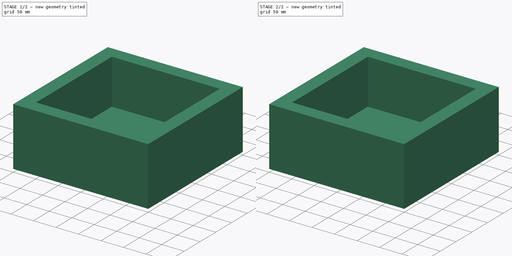
[diagram: build sequence overview — one tinted view per stage of 2, left to right]
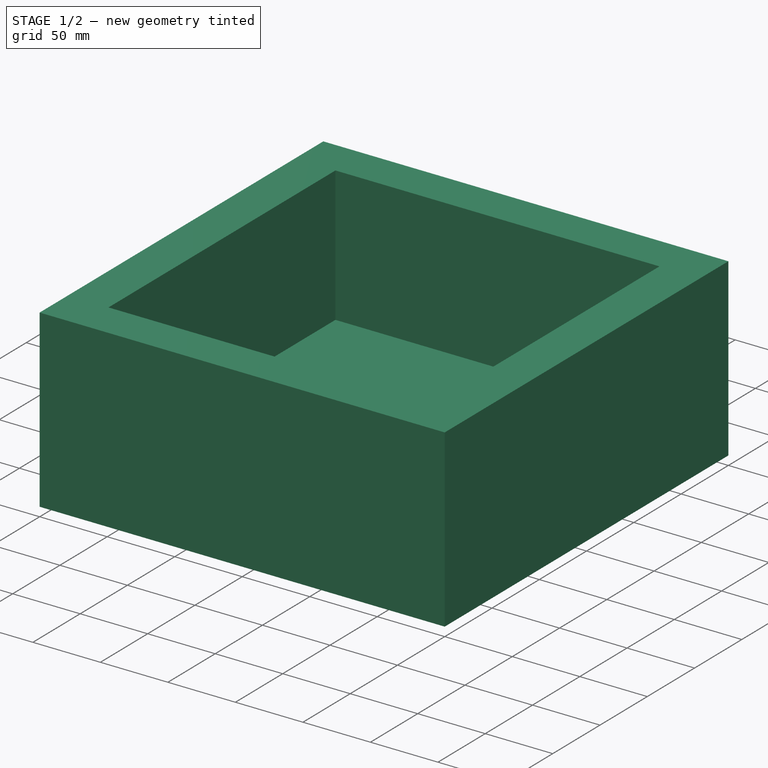
[diagram: stage 1 of 2 — iso view after this stage's code; geometry added in this stage tinted green]
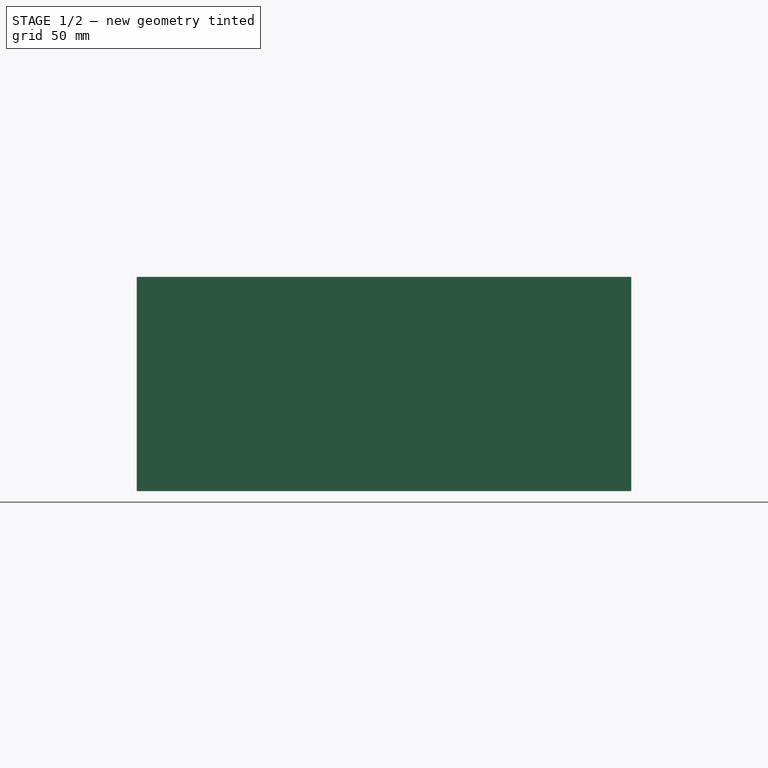
[diagram: stage 1 of 2 — front view after this stage's code; geometry added in this stage tinted green]
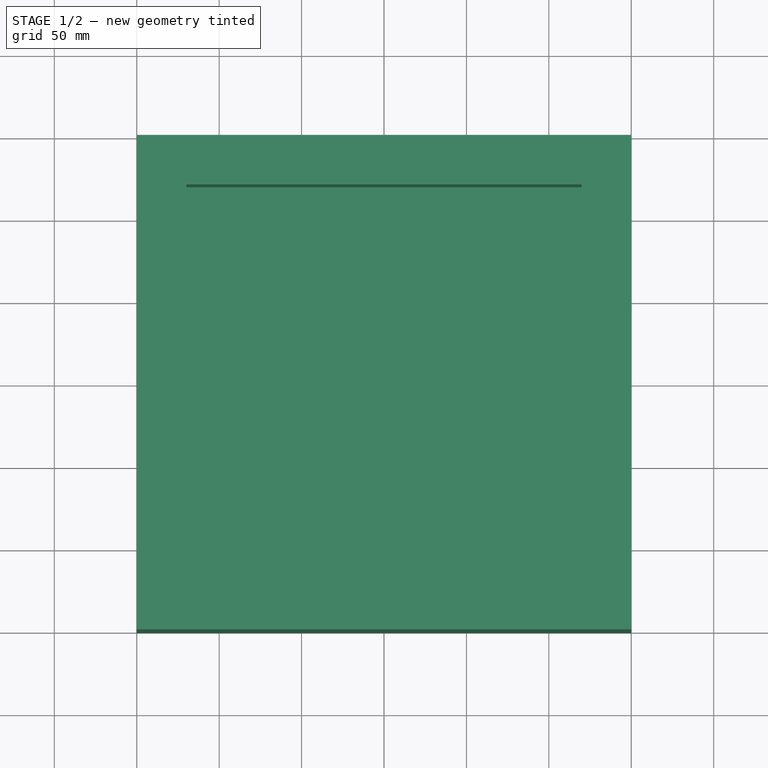
[diagram: stage 1 of 2 — top view after this stage's code; geometry added in this stage tinted green]
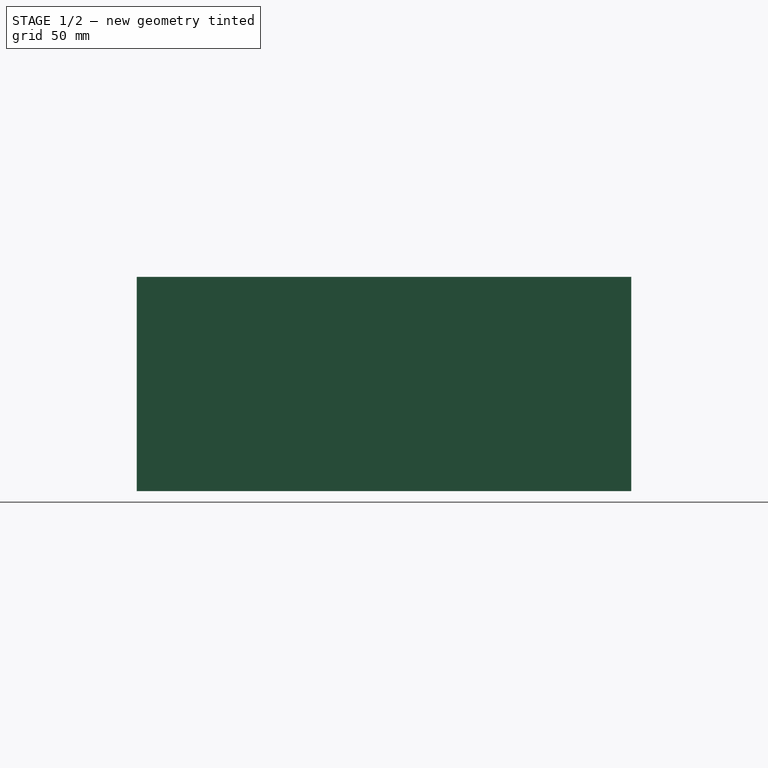
[diagram: stage 1 of 2 — right view after this stage's code; geometry added in this stage tinted green]
FCSTD DOCUMENT  (FreeCAD 0.18R4 (GitTag))
Label: Box_100mm
License: All rights reserved
LicenseURL: http://en.wikipedia.org/wiki/All_rights_reserved
objects: Sketcher::SketchObject×2, PartDesign::Pad×2, PartDesign::Body×2, PartDesign::Boolean×1
note: 9 computed .brp shape members not serialized (recipe doc carries the construction recipe); baked Part::Feature solids carry a one-line shape summary decoded from their .brp

FEATURE [Sketcher::SketchObject] Sketch
  sketch-geometry (4):
    g0: LineSegment StartX=0 StartY=0 StartZ=0 EndX=300 EndY=0 EndZ=0
    g1: LineSegment StartX=300 StartY=0 StartZ=0 EndX=300 EndY=300 EndZ=0
    g2: LineSegment StartX=300 StartY=300 StartZ=0 EndX=0 EndY=300 EndZ=0
    g3: LineSegment StartX=0 StartY=300 StartZ=0 EndX=0 EndY=0 EndZ=0
  constraints (11):
    c: Coincident(g0,g1)
    c: Coincident(g1,g2)
    c: Coincident(g2,g3)
    c: Coincident(g3,g0)
    c: Horizontal(g0)
    c: Horizontal(g2)
    c: Vertical(g1)
    c: Vertical(g3)
    c: Distance(g2) = 300
    c: Distance(g1) = 300
    c: Coincident(g0,g-1)
FEATURE [PartDesign::Pad] Pad
  Length = 30
  Length2 = 100
  Profile = -> Sketch
  Type = 0
FEATURE [PartDesign::Body] Body
  Group = -> [Sketch,Pad]
  Origin = -> Origin
  Tip = -> Pad
FEATURE [Sketcher::SketchObject] Sketch001
  MapMode = 5
  Placement = pos=(0,0,30) rot=(0,0,1;0rad)
  Support = -> [Pad]
  sketch-geometry (8):
    g0: LineSegment StartX=0 StartY=0 StartZ=0 EndX=300 EndY=0 EndZ=0
    g1: LineSegment StartX=300 StartY=0 StartZ=0 EndX=300 EndY=300 EndZ=0
    g2: LineSegment StartX=300 StartY=300 StartZ=0 EndX=0 EndY=300 EndZ=0
    g3: LineSegment StartX=0 StartY=300 StartZ=0 EndX=0 EndY=0 EndZ=0
    g4: LineSegment StartX=30 StartY=30 StartZ=0 EndX=270 EndY=30 EndZ=0
    g5: LineSegment StartX=270 StartY=30 StartZ=0 EndX=270 EndY=270 EndZ=0
    g6: LineSegment StartX=270 StartY=270 StartZ=0 EndX=30 EndY=270 EndZ=0
    g7: LineSegment StartX=30 StartY=270 StartZ=0 EndX=30 EndY=30 EndZ=0
  constraints (23):
    c: Coincident(g0,g1)
    c: Coincident(g1,g2)
    c: Coincident(g2,g3)
    c: Coincident(g3,g0)
    c: Horizontal(g0)
    c: Horizontal(g2)
    c: Vertical(g1)
    c: Vertical(g3)
    c: Coincident(g4,g5)
    c: Coincident(g5,g6)
    c: Coincident(g6,g7)
    c: Coincident(g7,g4)
    c: Horizontal(g4)
    c: Horizontal(g6)
    c: Vertical(g5)
    c: Vertical(g7)
    c: Distance(g0) = 300
    c: Distance(g1) = 300
    c: Coincident(g0,g-1)
    c: DistanceX(g0,g4) = 30
    c: DistanceY(g0,g4) = 30
    c: DistanceY(g5,g1) = 30
    c: DistanceX(g5,g1) = 30
FEATURE [PartDesign::Pad] Pad001
  Length = 100
  Length2 = 100
  Profile = -> Sketch001
  Type = 0
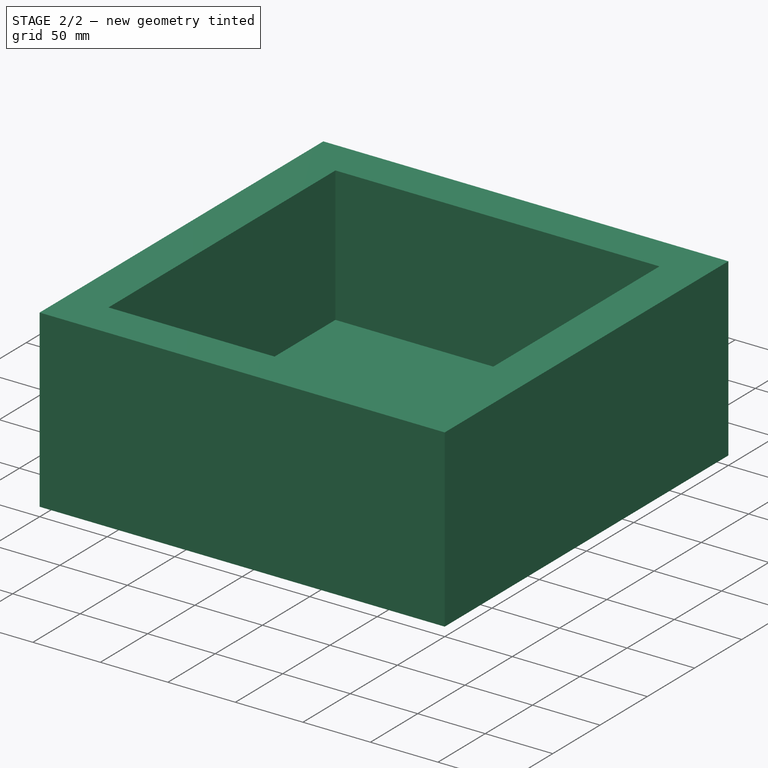
[diagram: stage 2 of 2 — iso view after this stage's code; geometry added in this stage tinted green]
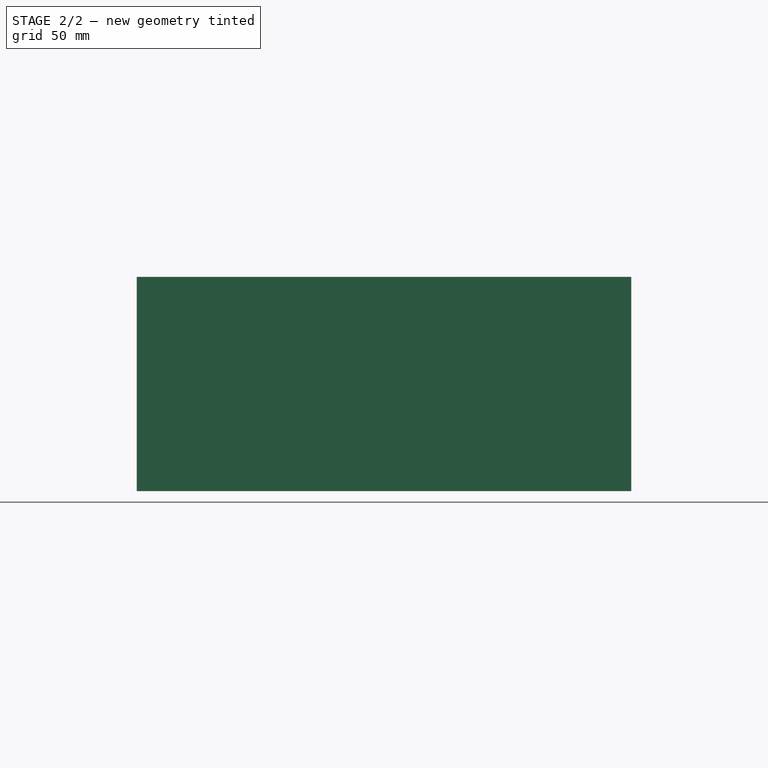
[diagram: stage 2 of 2 — front view after this stage's code; geometry added in this stage tinted green]
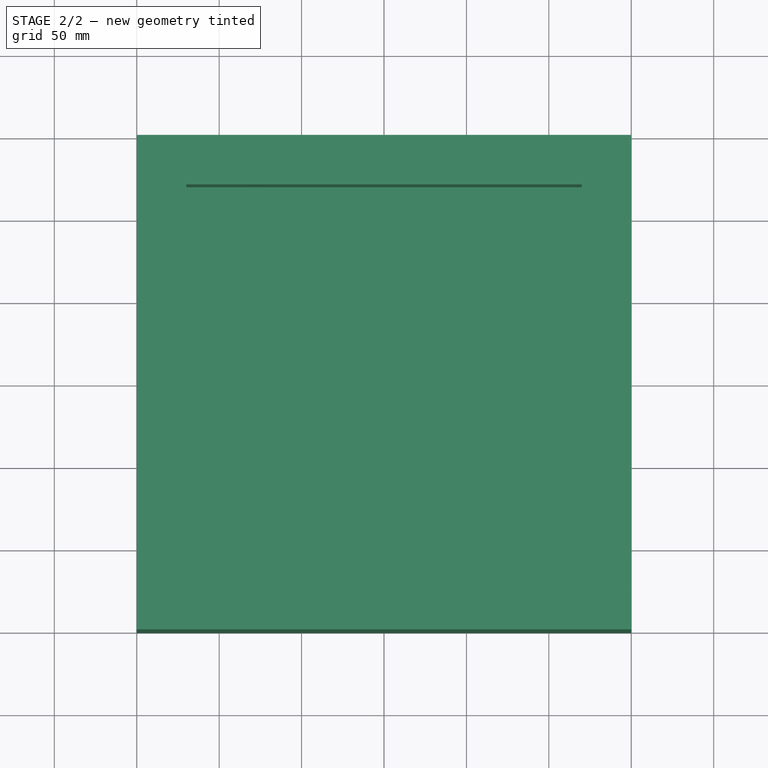
[diagram: stage 2 of 2 — top view after this stage's code; geometry added in this stage tinted green]
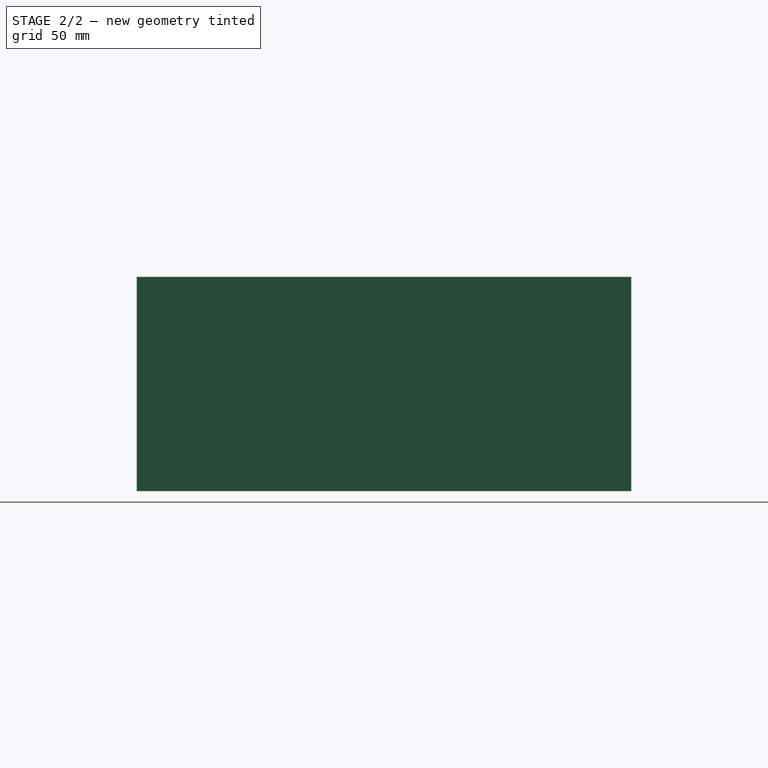
[diagram: stage 2 of 2 — right view after this stage's code; geometry added in this stage tinted green]
FEATURE [PartDesign::Boolean] Boolean
  BaseFeature = -> Pad001
  Group = -> [Body]
  Type = 0
FEATURE [PartDesign::Body] Body001
  Group = -> [Sketch001,Pad001,Boolean]
  Origin = -> Origin001
  Tip = -> Boolean
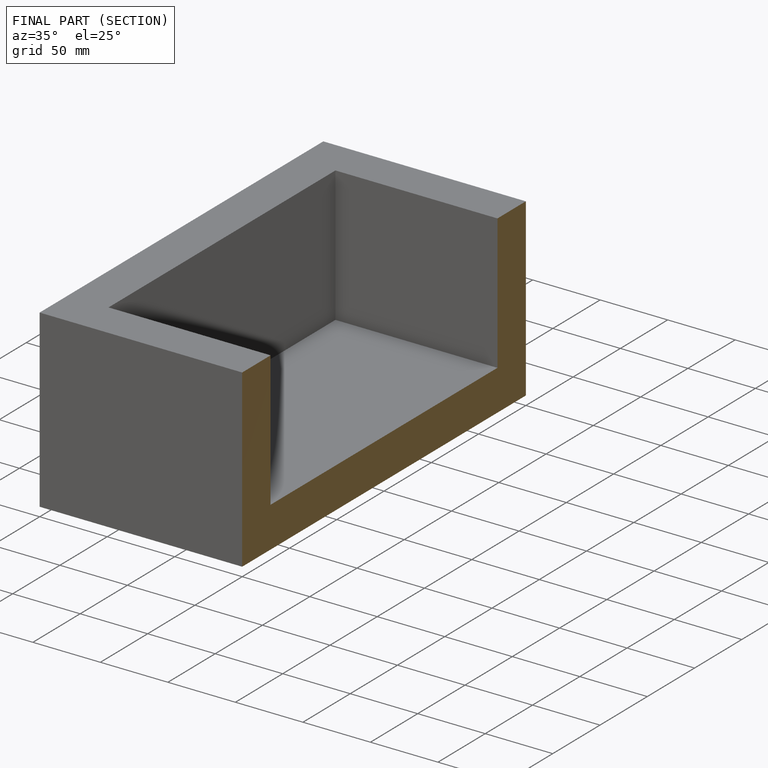
[diagram: finished part — half-section view (interior)]
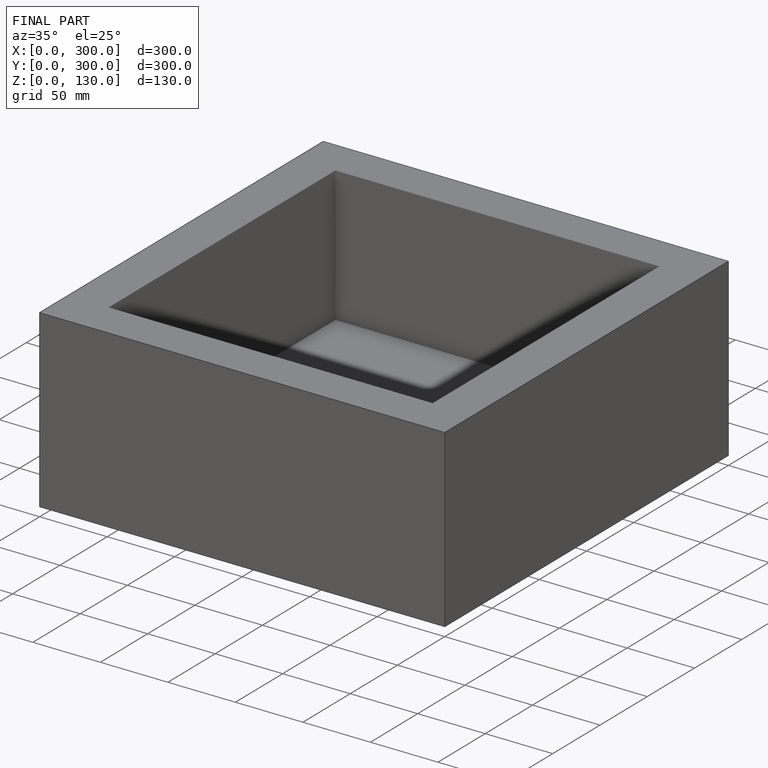
[diagram: finished part — iso view with bounding-box wireframe]
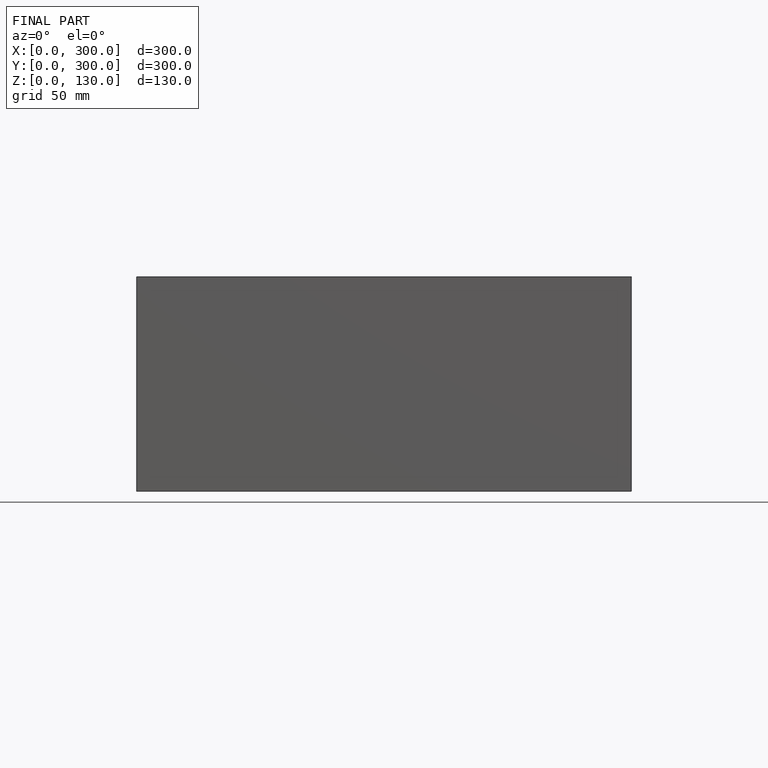
[diagram: finished part — front view with bounding-box wireframe]
